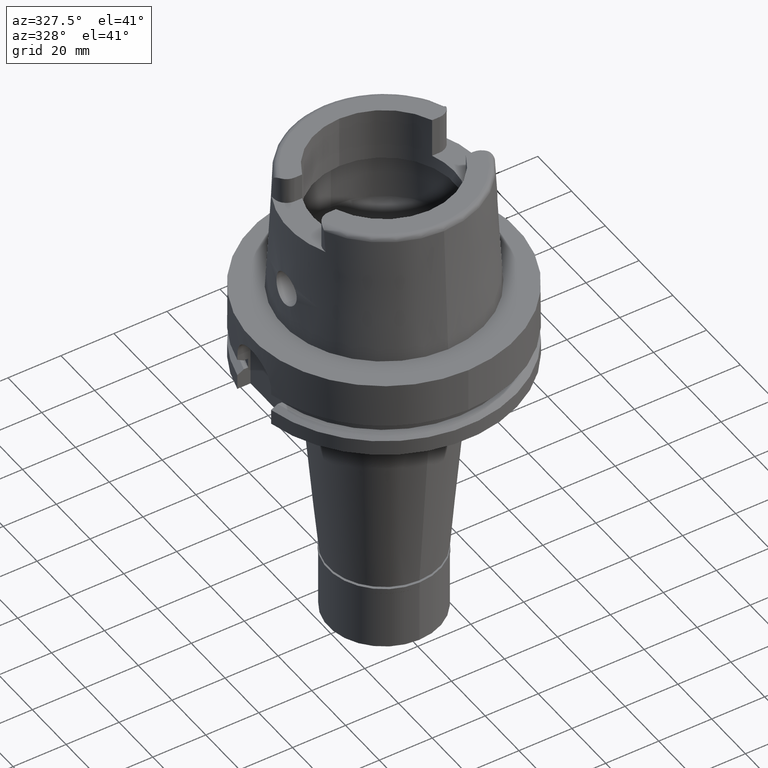
[diagram: clean part render]
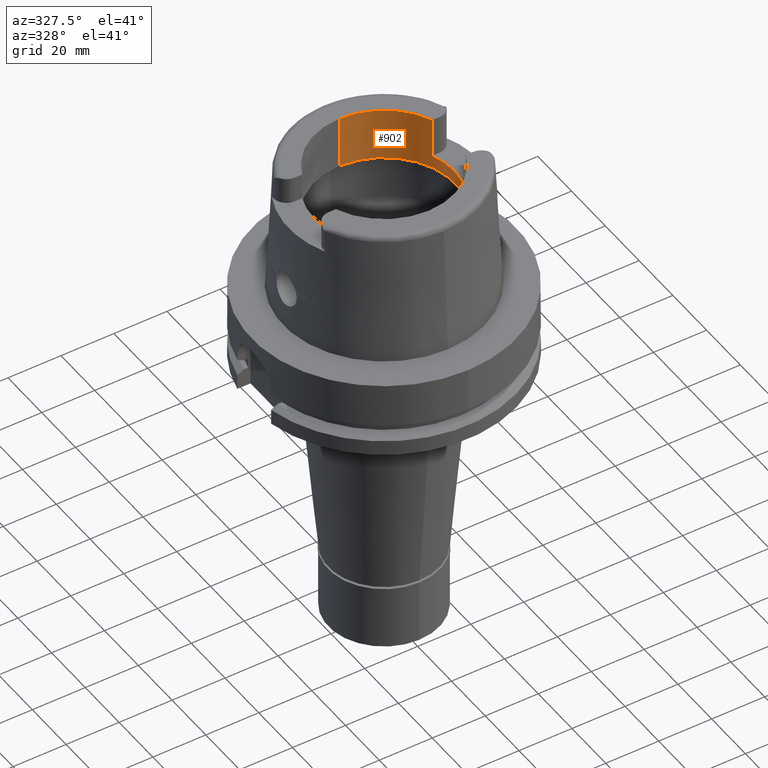
[diagram: same view with one face highlighted and labeled with its STEP entity id]
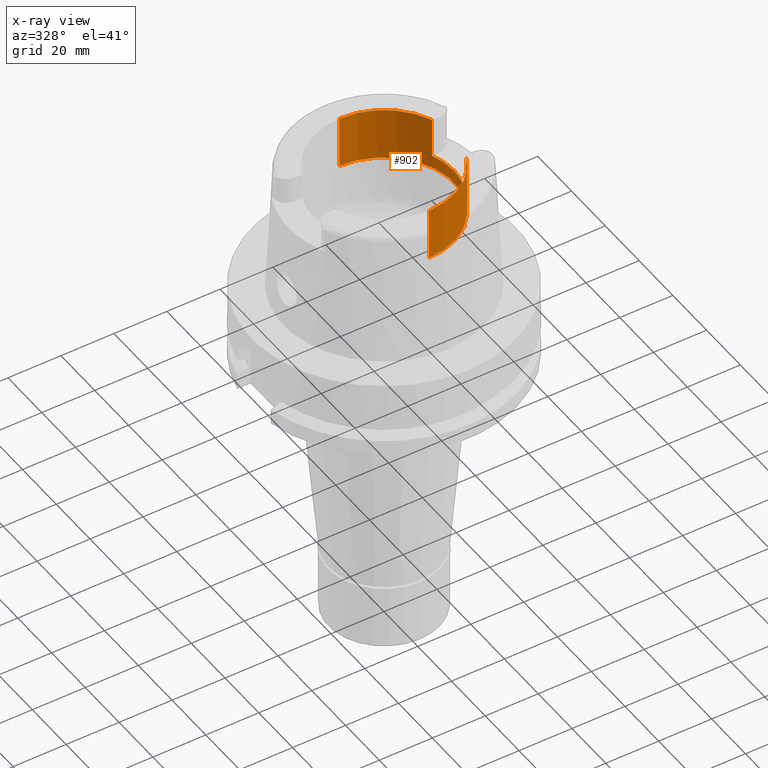
[diagram: x-ray of the same camera — body ghosted, the highlighted face saturated]
A machine part, auxiliary view. The second image highlights one B-rep face of the part: STEP entity #902.
The next image is the same camera in x-ray: the body ghosted, the highlighted face saturated — about 0% of this face is hidden behind the body in this view.
In plain terms, the highlighted cylindrical surface (partial cylindrical patch) has radius 26.5 mm, axis along (0, 0, 1).
Its self-contained STEP definition (entity closure, byte-faithful):
#76 = CARTESIAN_POINT ( 'NONE',  ( 24.53670515777999839, 10.00999999999999979, 50.00000000000000000 ) ) ;
#183 = DIRECTION ( 'NONE',  ( 0.0000000000000000000, 0.0000000000000000000, 1.000000000000000000 ) ) ;
#208 = EDGE_LOOP ( 'NONE', ( #5419, #3139, #3860, #2878, #2420, #1349, #5436, #502 ) ) ;
#271 = CARTESIAN_POINT ( 'NONE',  ( 24.53670515777999839, -10.00999999999999979, 35.00000000000000000 ) ) ;
#380 = EDGE_CURVE ( 'NONE', #5118, #2918, #1450, .T. ) ;
#502 = ORIENTED_EDGE ( 'NONE', *, *, #1136, .T. ) ;
#568 = CARTESIAN_POINT ( 'NONE',  ( 0.0000000000000000000, 26.50000000000000000, 50.00000000000000000 ) ) ;
#713 = CARTESIAN_POINT ( 'NONE',  ( 0.0000000000000000000, 0.0000000000000000000, -136.3750000000000000 ) ) ;
#863 = EDGE_CURVE ( 'NONE', #4468, #4658, #2397, .T. ) ;
#902 = ADVANCED_FACE ( 'NONE', ( #5357 ), #5412, .F. ) ;
#914 = CARTESIAN_POINT ( 'NONE',  ( 0.0000000000000000000, -26.50000000000000000, 30.00337567297000163 ) ) ;
#921 = DIRECTION ( 'NONE',  ( 0.0000000000000000000, 1.000000000000000000, 0.0000000000000000000 ) ) ;
#947 = LINE ( 'NONE', #76, #1126 ) ;
#1017 = DIRECTION ( 'NONE',  ( 0.0000000000000000000, 0.0000000000000000000, -1.000000000000000000 ) ) ;
#1126 = VECTOR ( 'NONE', #1017, 1000.000000000000000 ) ;
#1132 = AXIS2_PLACEMENT_3D ( 'NONE', #1299, #1242, #5157 ) ;
#1136 = EDGE_CURVE ( 'NONE', #4468, #2164, #4009, .T. ) ;
#1174 = VERTEX_POINT ( 'NONE', #3785 ) ;
#1242 = DIRECTION ( 'NONE',  ( 0.0000000000000000000, 0.0000000000000000000, 1.000000000000000000 ) ) ;
#1299 = CARTESIAN_POINT ( 'NONE',  ( 0.0000000000000000000, 0.0000000000000000000, 50.00000000000000000 ) ) ;
#1349 = ORIENTED_EDGE ( 'NONE', *, *, #3340, .T. ) ;
#1450 = LINE ( 'NONE', #5236, #4272 ) ;
#1469 = LINE ( 'NONE', #2698, #3480 ) ;
#1667 = CARTESIAN_POINT ( 'NONE',  ( 0.0000000000000000000, 0.0000000000000000000, 35.00000000000000000 ) ) ;
#1671 = EDGE_CURVE ( 'NONE', #1174, #2918, #2281, .T. ) ;
#1684 = CARTESIAN_POINT ( 'NONE',  ( 0.0000000000000000000, -26.50000000000000000, 50.00000000000000000 ) ) ;
#1741 = CIRCLE ( 'NONE', #4818, 26.50000000000000000 ) ;
#1845 = CARTESIAN_POINT ( 'NONE',  ( 24.53670515777999839, -10.00999999999999979, 50.00000000000000000 ) ) ;
#1943 = CIRCLE ( 'NONE', #1132, 26.50000000000000000 ) ;
#2164 = VERTEX_POINT ( 'NONE', #3888 ) ;
#2281 = CIRCLE ( 'NONE', #5102, 26.50000000000000711 ) ;
#2384 = CARTESIAN_POINT ( 'NONE',  ( 24.53670515777999839, -10.00999999999999979, 35.00000000000000000 ) ) ;
#2397 = LINE ( 'NONE', #271, #4452 ) ;
#2420 = ORIENTED_EDGE ( 'NONE', *, *, #2746, .T. ) ;
#2698 = CARTESIAN_POINT ( 'NONE',  ( 0.0000000000000000000, -26.50000000000000000, 30.00337567297000163 ) ) ;
#2746 = EDGE_CURVE ( 'NONE', #2850, #4529, #1469, .T. ) ;
#2834 = EDGE_CURVE ( 'NONE', #1174, #2164, #947, .T. ) ;
#2835 = DIRECTION ( 'NONE',  ( 0.0000000000000000000, 0.0000000000000000000, 1.000000000000000000 ) ) ;
#2850 = VERTEX_POINT ( 'NONE', #914 ) ;
#2878 = ORIENTED_EDGE ( 'NONE', *, *, #4563, .T. ) ;
#2918 = VERTEX_POINT ( 'NONE', #568 ) ;
#3139 = ORIENTED_EDGE ( 'NONE', *, *, #1671, .T. ) ;
#3169 = CARTESIAN_POINT ( 'NONE',  ( 0.0000000000000000000, 26.50000000000000000, 30.00337567297000163 ) ) ;
#3190 = DIRECTION ( 'NONE',  ( 0.0000000000000000000, 1.000000000000000000, 0.0000000000000000000 ) ) ;
#3340 = EDGE_CURVE ( 'NONE', #4529, #4658, #1943, .T. ) ;
#3404 = CARTESIAN_POINT ( 'NONE',  ( 0.0000000000000000000, 0.0000000000000000000, 50.00000000000000000 ) ) ;
#3480 = VECTOR ( 'NONE', #4901, 1000.000000000000000 ) ;
#3555 = AXIS2_PLACEMENT_3D ( 'NONE', #713, #4963, #3190 ) ;
#3785 = CARTESIAN_POINT ( 'NONE',  ( 24.53670515777999839, 10.00999999999999979, 50.00000000000000000 ) ) ;
#3860 = ORIENTED_EDGE ( 'NONE', *, *, #380, .F. ) ;
#3888 = CARTESIAN_POINT ( 'NONE',  ( 24.53670515777999839, 10.00999999999999979, 35.00000000000000000 ) ) ;
#3919 = DIRECTION ( 'NONE',  ( 0.0000000000000000000, -4.406108640804999471E-14, 1.000000000000000000 ) ) ;
#4009 = CIRCLE ( 'NONE', #4184, 26.50000000000000711 ) ;
#4048 = DIRECTION ( 'NONE',  ( 0.0000000000000000000, 0.0000000000000000000, -1.000000000000000000 ) ) ;
#4184 = AXIS2_PLACEMENT_3D ( 'NONE', #1667, #2835, #5560 ) ;
#4272 = VECTOR ( 'NONE', #3919, 1000.000000000000000 ) ;
#4443 = CARTESIAN_POINT ( 'NONE',  ( 0.0000000000000000000, 0.0000000000000000000, 30.00337567297000163 ) ) ;
#4452 = VECTOR ( 'NONE', #183, 1000.000000000000000 ) ;
#4468 = VERTEX_POINT ( 'NONE', #2384 ) ;
#4529 = VERTEX_POINT ( 'NONE', #1684 ) ;
#4563 = EDGE_CURVE ( 'NONE', #5118, #2850, #1741, .T. ) ;
#4658 = VERTEX_POINT ( 'NONE', #1845 ) ;
#4681 = DIRECTION ( 'NONE',  ( 0.0000000000000000000, 0.0000000000000000000, 1.000000000000000000 ) ) ;
#4818 = AXIS2_PLACEMENT_3D ( 'NONE', #4443, #4048, #921 ) ;
#4901 = DIRECTION ( 'NONE',  ( 0.0000000000000000000, 4.406108640804999471E-14, 1.000000000000000000 ) ) ;
#4963 = DIRECTION ( 'NONE',  ( 0.0000000000000000000, 0.0000000000000000000, 1.000000000000000000 ) ) ;
#5102 = AXIS2_PLACEMENT_3D ( 'NONE', #3404, #4681, #5502 ) ;
#5118 = VERTEX_POINT ( 'NONE', #3169 ) ;
#5157 = DIRECTION ( 'NONE',  ( 0.0000000000000000000, -1.000000000000000000, 0.0000000000000000000 ) ) ;
#5236 = CARTESIAN_POINT ( 'NONE',  ( 0.0000000000000000000, 26.50000000000000000, 30.00337567297000163 ) ) ;
#5357 = FACE_OUTER_BOUND ( 'NONE', #208, .T. ) ;
#5412 = CYLINDRICAL_SURFACE ( 'NONE', #3555, 26.50000000000000000 ) ;
#5419 = ORIENTED_EDGE ( 'NONE', *, *, #2834, .F. ) ;
#5436 = ORIENTED_EDGE ( 'NONE', *, *, #863, .F. ) ;
#5502 = DIRECTION ( 'NONE',  ( 0.9259134021805098813, 0.3777358490566039562, 0.0000000000000000000 ) ) ;
#5560 = DIRECTION ( 'NONE',  ( 0.9259134021805098813, -0.3777358490566039562, 0.0000000000000000000 ) ) ;